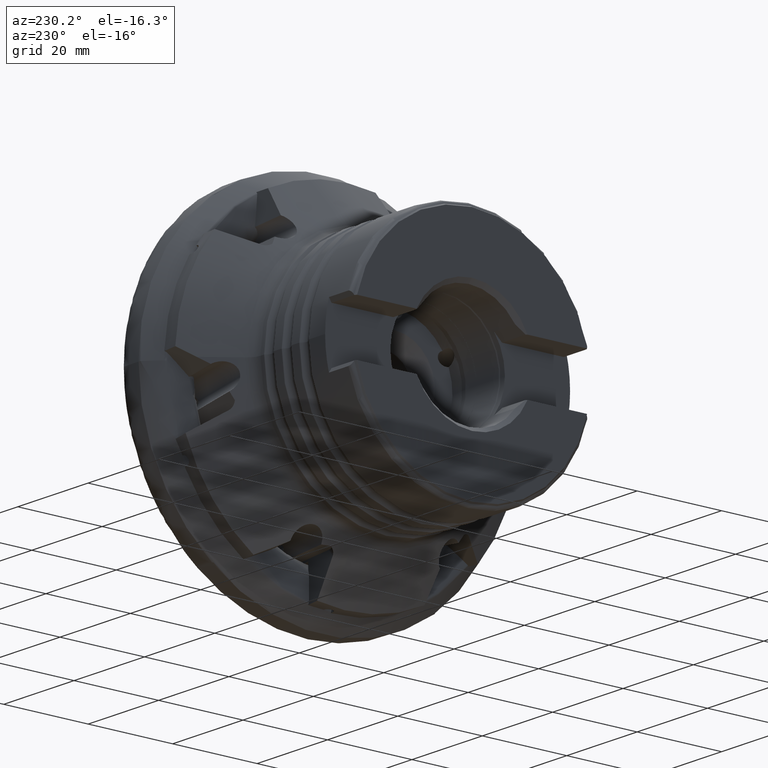
[diagram: clean part render]
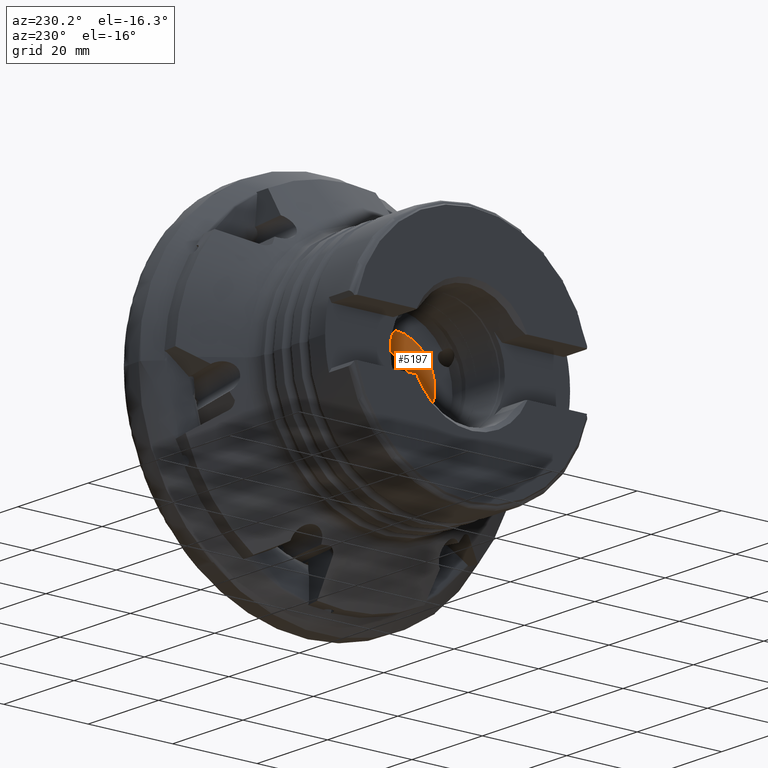
[diagram: same view with one face highlighted and labeled with its STEP entity id]
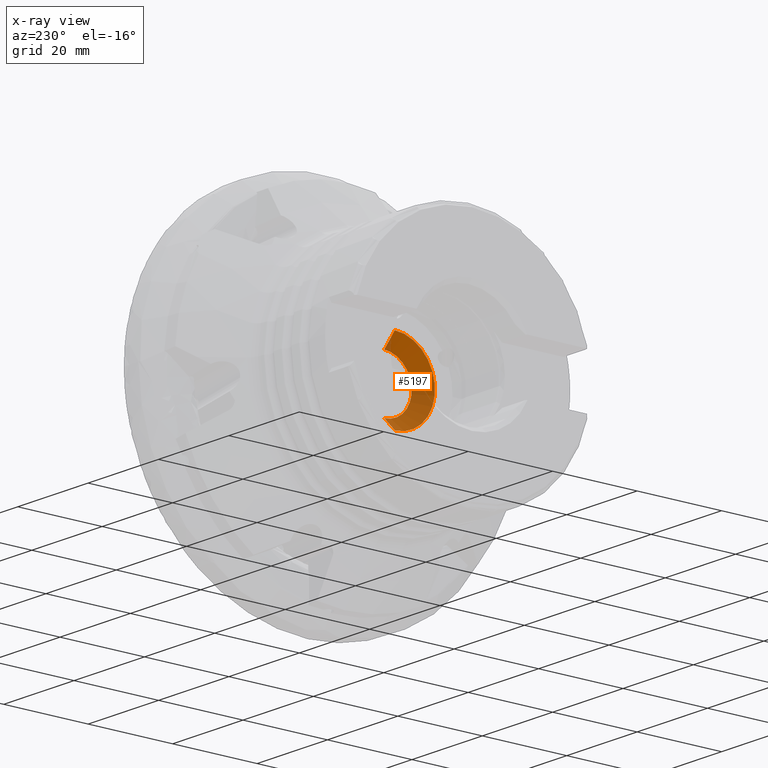
[diagram: x-ray of the same camera — body ghosted, the highlighted face saturated]
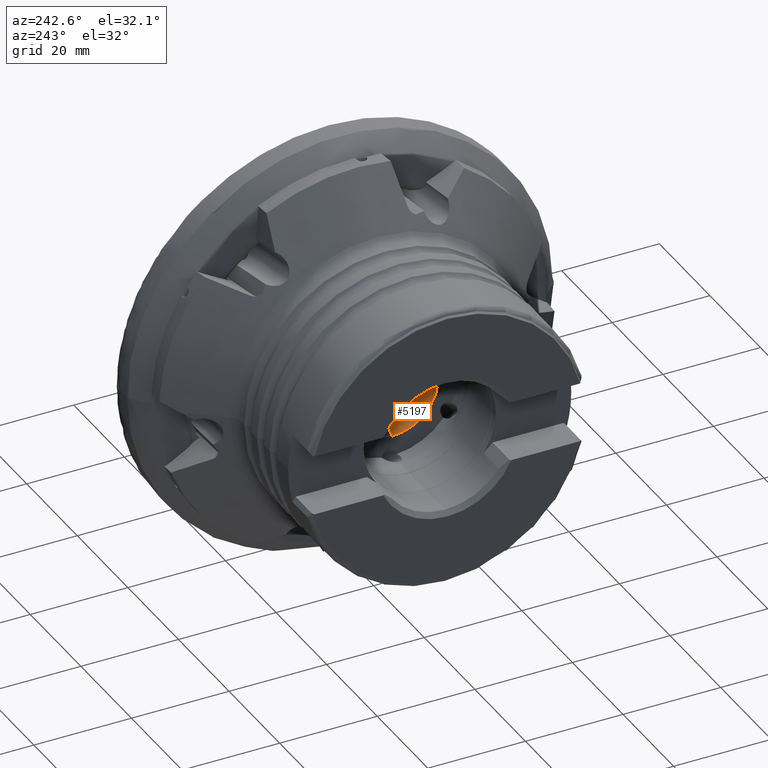
[diagram: same view with one face highlighted and labeled with its STEP entity id]
A machine part, auxiliary view. The second image highlights one B-rep face of the part: STEP entity #5197.
The next image is the same camera in x-ray: the body ghosted, the highlighted face saturated — about 47% of this face is hidden behind the body in this view.
A second angle (auxiliary view) of the same face is appended — the face is thin or edge-on in the first view.
In plain terms, the highlighted conical surface has half-angle 45 deg.
Its self-contained STEP definition (entity closure, byte-faithful):
#39 = CARTESIAN_POINT ( 'NONE',  ( -24.15000000000000200, 0.0000000000000000000, 0.0000000000000000000 ) ) ;
#250 = CONICAL_SURFACE ( 'NONE', #3444, 6.499999999999997300, 0.7853981633974485000 ) ;
#718 = DIRECTION ( 'NONE',  ( -1.000000000000000000, 0.0000000000000000000, 0.0000000000000000000 ) ) ;
#782 = LINE ( 'NONE', #12428, #11221 ) ;
#1133 = DIRECTION ( 'NONE',  ( 0.0000000000000000000, 0.0000000000000000000, -1.000000000000000000 ) ) ;
#1141 = CARTESIAN_POINT ( 'NONE',  ( -24.15000000000000200, 0.0000000000000000000, 6.499999999999997300 ) ) ;
#1299 = CIRCLE ( 'NONE', #6030, 9.500000000000005300 ) ;
#1503 = DIRECTION ( 'NONE',  ( 1.000000000000000000, -0.0000000000000000000, -0.0000000000000000000 ) ) ;
#2694 = VERTEX_POINT ( 'NONE', #4835 ) ;
#3444 = AXIS2_PLACEMENT_3D ( 'NONE', #7979, #718, #7524 ) ;
#3742 = VERTEX_POINT ( 'NONE', #5387 ) ;
#4145 = VERTEX_POINT ( 'NONE', #10118 ) ;
#4210 = VERTEX_POINT ( 'NONE', #11012 ) ;
#4835 = CARTESIAN_POINT ( 'NONE',  ( -27.15000000000000600, 0.0000000000000000000, 9.500000000000005300 ) ) ;
#5063 = EDGE_LOOP ( 'NONE', ( #5978, #12016, #6441, #12957 ) ) ;
#5197 = ADVANCED_FACE ( 'NONE', ( #11030 ), #250, .F. ) ;
#5387 = CARTESIAN_POINT ( 'NONE',  ( -27.15000000000000600, 1.163414459189986300E-015, -9.500000000000005300 ) ) ;
#5978 = ORIENTED_EDGE ( 'NONE', *, *, #9184, .T. ) ;
#6030 = AXIS2_PLACEMENT_3D ( 'NONE', #7489, #1503, #8475 ) ;
#6138 = DIRECTION ( 'NONE',  ( -0.7071067811865473500, 0.0000000000000000000, 0.7071067811865477900 ) ) ;
#6305 = LINE ( 'NONE', #1141, #11717 ) ;
#6441 = ORIENTED_EDGE ( 'NONE', *, *, #8900, .F. ) ;
#6453 = AXIS2_PLACEMENT_3D ( 'NONE', #39, #7127, #1133 ) ;
#7127 = DIRECTION ( 'NONE',  ( 1.000000000000000000, -0.0000000000000000000, -0.0000000000000000000 ) ) ;
#7489 = CARTESIAN_POINT ( 'NONE',  ( -27.15000000000000600, 0.0000000000000000000, 0.0000000000000000000 ) ) ;
#7524 = DIRECTION ( 'NONE',  ( 0.0000000000000000000, 0.0000000000000000000, 1.000000000000000000 ) ) ;
#7979 = CARTESIAN_POINT ( 'NONE',  ( -24.15000000000000200, 0.0000000000000000000, 0.0000000000000000000 ) ) ;
#8472 = CIRCLE ( 'NONE', #6453, 6.499999999999997300 ) ;
#8475 = DIRECTION ( 'NONE',  ( 0.0000000000000000000, 0.0000000000000000000, -1.000000000000000000 ) ) ;
#8900 = EDGE_CURVE ( 'Kante14', #2694, #3742, #1299, .T. ) ;
#9184 = EDGE_CURVE ( 'NONE', #4145, #4210, #8472, .T. ) ;
#10040 = EDGE_CURVE ( 'NONE', #4210, #3742, #782, .T. ) ;
#10118 = CARTESIAN_POINT ( 'NONE',  ( -24.15000000000000200, 7.960204194457792500E-016, 6.499999999999997300 ) ) ;
#10619 = EDGE_CURVE ( 'NONE', #4145, #2694, #6305, .T. ) ;
#11012 = CARTESIAN_POINT ( 'NONE',  ( -24.15000000000000200, 0.0000000000000000000, -6.499999999999997300 ) ) ;
#11030 = FACE_OUTER_BOUND ( 'NONE', #5063, .T. ) ;
#11221 = VECTOR ( 'NONE', #11459, 999.9999999999998900 ) ;
#11459 = DIRECTION ( 'NONE',  ( -0.7071067811865473500, 8.659560562354936600E-017, -0.7071067811865477900 ) ) ;
#11717 = VECTOR ( 'NONE', #6138, 999.9999999999998900 ) ;
#12016 = ORIENTED_EDGE ( 'NONE', *, *, #10040, .T. ) ;
#12428 = CARTESIAN_POINT ( 'NONE',  ( -24.15000000000000200, 7.960204194457792500E-016, -6.499999999999997300 ) ) ;
#12957 = ORIENTED_EDGE ( 'NONE', *, *, #10619, .F. ) ;